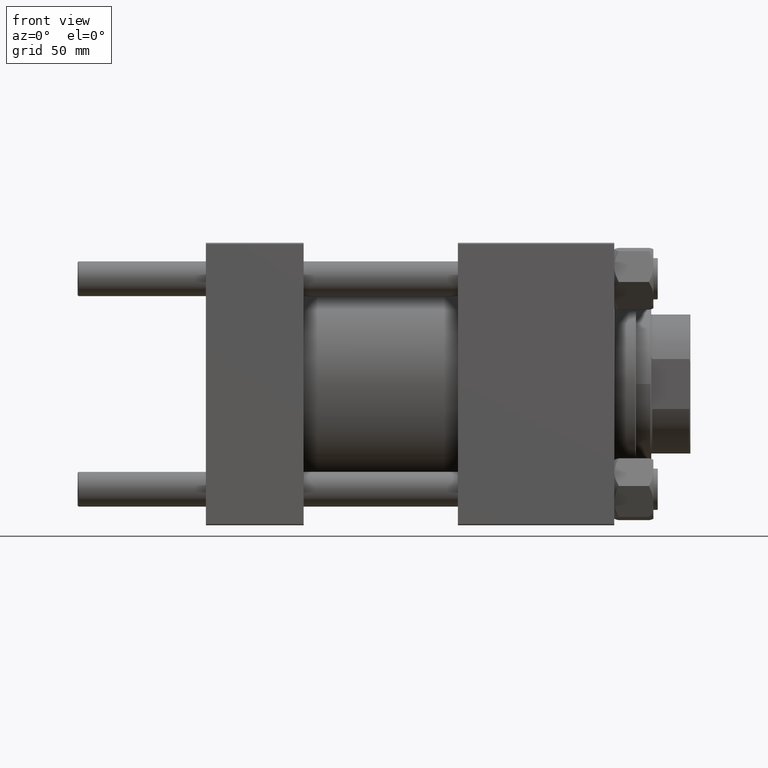
[diagram: clean part render]
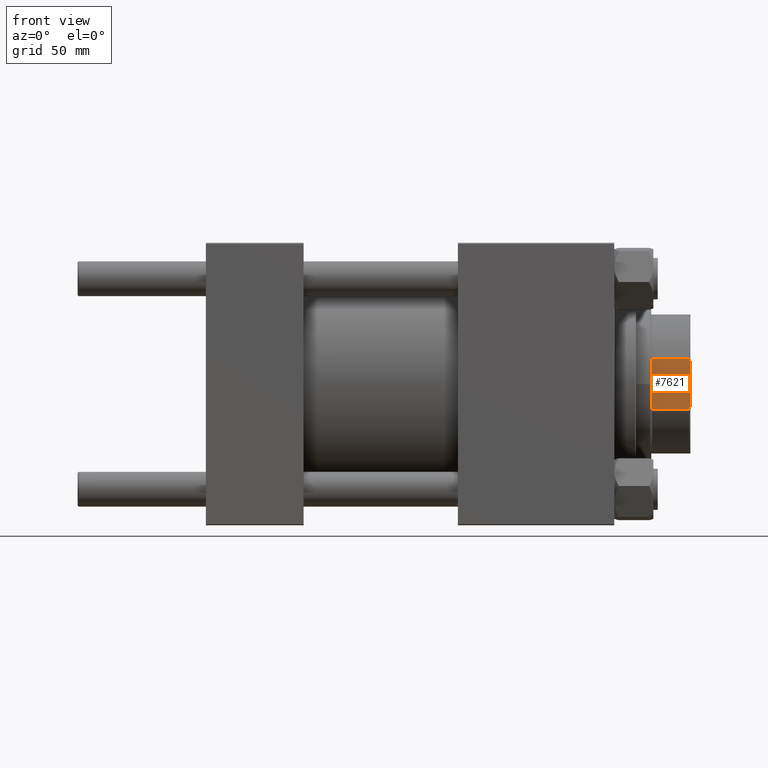
[diagram: same view with one face highlighted and labeled with its STEP entity id]
A machine part, front view. The second image highlights one B-rep face of the part: STEP entity #7621.
In plain terms, the highlighted planar face has unit normal (0, 1, 0).
Its self-contained STEP definition (entity closure, byte-faithful):
#221 = CARTESIAN_POINT ( 'NONE',  ( 31.99999999999999289, 32.00000000000000000, 160.0000000000000000 ) ) ;
#228 = CARTESIAN_POINT ( 'NONE',  ( 31.99999999999999289, -11.48912529307609098, 177.5000000000000568 ) ) ;
#1106 = EDGE_CURVE ( 'NONE', #11085, #19661, #11453, .T. ) ;
#1280 = VECTOR ( 'NONE', #15120, 1000.000000000000000 ) ;
#3026 = CARTESIAN_POINT ( 'NONE',  ( 32.00000000000000000, -10.96659503312093875, 177.6765710478250071 ) ) ;
#3506 = CARTESIAN_POINT ( 'NONE',  ( 31.99999999999999289, 11.48912529307608210, 160.5000000000000000 ) ) ;
#3784 = VECTOR ( 'NONE', #25628, 1000.000000000000000 ) ;
#4965 = CARTESIAN_POINT ( 'NONE',  ( 31.99999999999999289, 11.48912529307608210, 160.5000000000000000 ) ) ;
#5333 = VECTOR ( 'NONE', #38749, 1000.000000000000000 ) ;
#6609 = CARTESIAN_POINT ( 'NONE',  ( 32.00000000000000000, -10.44101023457685784, 177.8435080107332169 ) ) ;
#6628 = ORIENTED_EDGE ( 'NONE', *, *, #47022, .F. ) ;
#7196 = LINE ( 'NONE', #37835, #1280 ) ;
#7621 = ADVANCED_FACE ( 'NONE', ( #41135 ), #17173, .F. ) ;
#8224 = CARTESIAN_POINT ( 'NONE',  ( 31.99999999999999289, 11.48912529307608210, 177.5000000000000568 ) ) ;
#8331 = VERTEX_POINT ( 'NONE', #49856 ) ;
#9260 = ORIENTED_EDGE ( 'NONE', *, *, #1106, .T. ) ;
#10016 = DIRECTION ( 'NONE',  ( 1.084202172485504434E-16, -1.000000000000000000, 0.000000000000000000 ) ) ;
#10776 = CARTESIAN_POINT ( 'NONE',  ( 32.00000000000000000, -9.912113800799724928, 178.0000000000000000 ) ) ;
#11085 = VERTEX_POINT ( 'NONE', #36256 ) ;
#11453 = LINE ( 'NONE', #221, #5333 ) ;
#14660 = VERTEX_POINT ( 'NONE', #4965 ) ;
#15120 = DIRECTION ( 'NONE',  ( -0.000000000000000000, -0.000000000000000000, 1.000000000000000000 ) ) ;
#15137 = CARTESIAN_POINT ( 'NONE',  ( 31.99999999999999289, -11.48912529307609098, -0.001000000000001000089 ) ) ;
#15236 = CARTESIAN_POINT ( 'NONE',  ( 31.99999999999999289, -11.96085035339790714, 160.3405968140611435 ) ) ;
#15514 = CARTESIAN_POINT ( 'NONE',  ( 31.99999999999999289, 12.42815443776489204, 160.1740260902598152 ) ) ;
#16941 = EDGE_LOOP ( 'NONE', ( #26513, #34384, #6628, #27401, #29689, #41994, #9260, #42635 ) ) ;
#17173 = PLANE ( 'NONE',  #23501 ) ;
#18854 = EDGE_CURVE ( 'NONE', #8331, #31665, #19220, .T. ) ;
#19220 = LINE ( 'NONE', #15137, #38411 ) ;
#19661 = VERTEX_POINT ( 'NONE', #28243 ) ;
#21923 = EDGE_CURVE ( 'NONE', #22178, #23857, #27302, .T. ) ;
#22178 = VERTEX_POINT ( 'NONE', #8224 ) ;
#23363 = CARTESIAN_POINT ( 'NONE',  ( 32.00000000000000000, 9.912113800799749797, 178.0000000000000000 ) ) ;
#23501 = AXIS2_PLACEMENT_3D ( 'NONE', #29400, #37324, #10016 ) ;
#23857 = VERTEX_POINT ( 'NONE', #41888 ) ;
#25628 = DIRECTION ( 'NONE',  ( -1.084202172485504434E-16, 1.000000000000000000, -0.000000000000000000 ) ) ;
#26513 = ORIENTED_EDGE ( 'NONE', *, *, #44832, .T. ) ;
#26977 = EDGE_CURVE ( 'NONE', #19661, #14660, #39045, .T. ) ;
#27165 = CARTESIAN_POINT ( 'NONE',  ( 31.99999999999999289, 10.96659503312094408, 177.6765710478250071 ) ) ;
#27302 = B_SPLINE_CURVE_WITH_KNOTS ( 'NONE', 3,
 ( #35603, #27165, #47064, #23363 ),
 .UNSPECIFIED., .F., .F.,
 ( 4, 4 ),
 ( 0.000000000000000000, 0.001654377601024496942 ),
 .UNSPECIFIED. ) ;
#27401 = ORIENTED_EDGE ( 'NONE', *, *, #38526, .T. ) ;
#28243 = CARTESIAN_POINT ( 'NONE',  ( 31.99999999999999289, 12.89379695822763949, 160.0000000000000000 ) ) ;
#29400 = CARTESIAN_POINT ( 'NONE',  ( 31.99999999999999289, 32.00000000000000000, 178.0000000000000000 ) ) ;
#29689 = ORIENTED_EDGE ( 'NONE', *, *, #18854, .F. ) ;
#29776 = CARTESIAN_POINT ( 'NONE',  ( 31.99999999999999289, -11.48912529307609098, 160.5000000000000000 ) ) ;
#29824 = CARTESIAN_POINT ( 'NONE',  ( 32.00000000000000000, -9.912113800799724928, 178.0000000000000000 ) ) ;
#30437 = DIRECTION ( 'NONE',  ( -0.000000000000000000, -0.000000000000000000, 1.000000000000000000 ) ) ;
#31665 = VERTEX_POINT ( 'NONE', #228 ) ;
#31848 = EDGE_CURVE ( 'NONE', #8331, #11085, #33306, .T. ) ;
#33306 = B_SPLINE_CURVE_WITH_KNOTS ( 'NONE', 3,
 ( #29776, #15236, #49917, #46349 ),
 .UNSPECIFIED., .F., .F.,
 ( 4, 4 ),
 ( 0.1314599852491796506, 0.1329077376904515551 ),
 .UNSPECIFIED. ) ;
#34384 = ORIENTED_EDGE ( 'NONE', *, *, #21923, .T. ) ;
#35603 = CARTESIAN_POINT ( 'NONE',  ( 31.99999999999999289, 11.48912529307608210, 177.5000000000000568 ) ) ;
#36070 = B_SPLINE_CURVE_WITH_KNOTS ( 'NONE', 3,
 ( #29824, #6609, #3026, #45392 ),
 .UNSPECIFIED., .F., .F.,
 ( 4, 4 ),
 ( 0.000000000000000000, 0.001654377601024528167 ),
 .UNSPECIFIED. ) ;
#36256 = CARTESIAN_POINT ( 'NONE',  ( 31.99999999999999289, -12.89379695822764127, 160.0000000000000000 ) ) ;
#37324 = DIRECTION ( 'NONE',  ( -1.000000000000000000, -1.084202172485504434E-16, 0.000000000000000000 ) ) ;
#37835 = CARTESIAN_POINT ( 'NONE',  ( 31.99999999999999289, 11.48912529307608210, -0.001000000000001000089 ) ) ;
#38411 = VECTOR ( 'NONE', #30437, 1000.000000000000000 ) ;
#38478 = CARTESIAN_POINT ( 'NONE',  ( 31.99999999999999289, 12.89379695822763949, 160.0000000000000000 ) ) ;
#38526 = EDGE_CURVE ( 'NONE', #43868, #31665, #36070, .T. ) ;
#38749 = DIRECTION ( 'NONE',  ( -1.084202172485504434E-16, 1.000000000000000000, -0.000000000000000000 ) ) ;
#39045 = B_SPLINE_CURVE_WITH_KNOTS ( 'NONE', 3,
 ( #38478, #15514, #42550, #3506 ),
 .UNSPECIFIED., .F., .F.,
 ( 4, 4 ),
 ( 0.1673897512801410803, 0.1688804722548878645 ),
 .UNSPECIFIED. ) ;
#41135 = FACE_OUTER_BOUND ( 'NONE', #16941, .T. ) ;
#41888 = CARTESIAN_POINT ( 'NONE',  ( 32.00000000000000000, 9.912113800799749797, 178.0000000000000000 ) ) ;
#41994 = ORIENTED_EDGE ( 'NONE', *, *, #31848, .T. ) ;
#42550 = CARTESIAN_POINT ( 'NONE',  ( 31.99999999999999289, 11.95999793109655585, 160.3408848607265327 ) ) ;
#42635 = ORIENTED_EDGE ( 'NONE', *, *, #26977, .T. ) ;
#43868 = VERTEX_POINT ( 'NONE', #10776 ) ;
#44015 = LINE ( 'NONE', #44270, #3784 ) ;
#44270 = CARTESIAN_POINT ( 'NONE',  ( 31.99999999999999289, 32.00000000000000000, 178.0000000000000000 ) ) ;
#44832 = EDGE_CURVE ( 'NONE', #14660, #22178, #7196, .T. ) ;
#45392 = CARTESIAN_POINT ( 'NONE',  ( 31.99999999999999289, -11.48912529307609098, 177.5000000000000568 ) ) ;
#46349 = CARTESIAN_POINT ( 'NONE',  ( 31.99999999999999289, -12.89379695822764127, 160.0000000000000000 ) ) ;
#47022 = EDGE_CURVE ( 'NONE', #43868, #23857, #44015, .T. ) ;
#47064 = CARTESIAN_POINT ( 'NONE',  ( 31.99999999999999289, 10.44101023457687205, 177.8435080107332169 ) ) ;
#49856 = CARTESIAN_POINT ( 'NONE',  ( 31.99999999999999289, -11.48912529307609098, 160.5000000000000000 ) ) ;
#49917 = CARTESIAN_POINT ( 'NONE',  ( 31.99999999999999289, -12.42943788034663477, 160.1735464250987491 ) ) ;